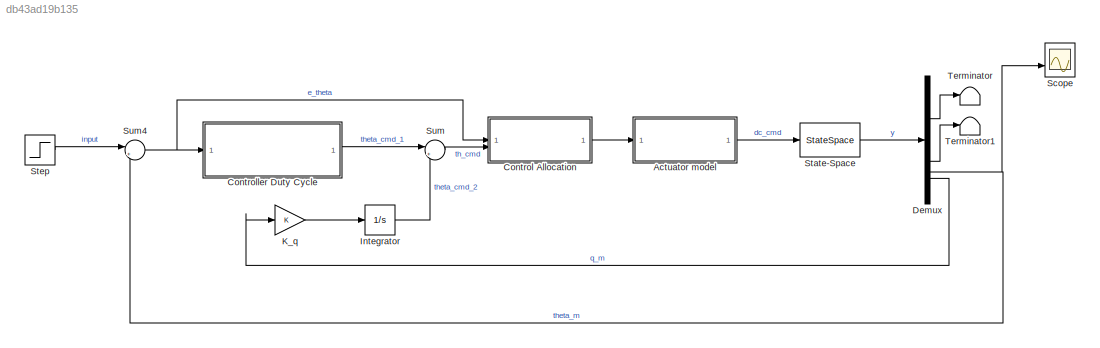
MODEL slx_db43ad19b135
KIND model
CONFIG AbsTol = auto
CONFIG EnableMultiTasking = off
CONFIG FixedStep = auto
CONFIG MaxStep = auto
CONFIG MinStep = auto
CONFIG RelTol = 1e-3
CONFIG SampleTimeConstraint = Unconstrained
CONFIG SolverName = VariableStepAuto
CONFIG StartTime = 0.0
CONFIG StopTime = 10
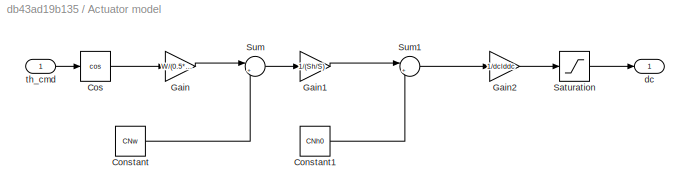
BLOCK [SubSystem] Actuator model
BLOCK [Constant] Actuator model/Constant
  Value = CNw
BLOCK [Constant] Actuator model/Constant1
  Value = CNh0
BLOCK [Trigonometry] Actuator model/Cos
  Operator = cos
BLOCK [Gain] Actuator model/Gain
  Gain = W/(0.5*rho*V^2*S)
BLOCK [Gain] Actuator model/Gain1
  Gain = 1/(Sh/S)
BLOCK [Gain] Actuator model/Gain2
  Gain = 1/dclddc
BLOCK [Saturate] Actuator model/Saturation
  LowerLimit = 0
  UpperLimit = 1
BLOCK [Sum] Actuator model/Sum
  Inputs = |+-
BLOCK [Sum] Actuator model/Sum1
  Inputs = |+-
BLOCK [Outport] Actuator model/dc
BLOCK [Inport] Actuator model/th_cmd
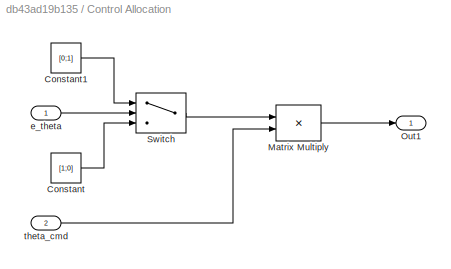
BLOCK [SubSystem] Control Allocation
BLOCK [Constant] Control Allocation/Constant
  Value = [1;0]
  VectorParams1D = off
BLOCK [Constant] Control Allocation/Constant1
  Value = [0;1]
  VectorParams1D = off
BLOCK [Product] Control Allocation/Matrix Multiply
  Multiplication = Matrix(*)
BLOCK [Outport] Control Allocation/Out1
BLOCK [Switch] Control Allocation/Switch
  Criteria = u2 > Threshold
  InputSameDT = off
  SaturateOnIntegerOverflow = off
BLOCK [Inport] Control Allocation/e_theta
BLOCK [Inport] Control Allocation/theta_cmd
  Port = 2
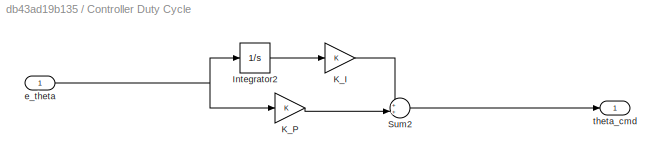
BLOCK [SubSystem] Controller Duty Cycle
BLOCK [Integrator] Controller Duty Cycle/Integrator2
BLOCK [Gain] Controller Duty Cycle/K_I
BLOCK [Gain] Controller Duty Cycle/K_P
BLOCK [Sum] Controller Duty Cycle/Sum2
  Inputs = ++|
BLOCK [Inport] Controller Duty Cycle/e_theta
BLOCK [Outport] Controller Duty Cycle/theta_cmd
BLOCK [Demux] Demux
BLOCK [Integrator] Integrator
BLOCK [Gain] K_q
BLOCK [Scope] Scope
  Floating = off
  NumInputPorts = 3
  ScopeSpecificationString = Simulink.scopes.TimeScopeBlockCfg('CurrentConfiguration', extmgr.ConfigurationSet(extmgr.Configuration('Core','General UI',true),extmgr.Configuration('Core','Source UI',true),extmgr.Configuration('Sources','WiredSimulink',true),extmgr.Configuration('Visuals','Time Domain',true,'SerializedDisplays',{struct('MinYLimReal','-0.00000000000000000000000000000000005','MaxYLimReal','0.000000000000000000000...<+1666ch>
BLOCK [StateSpace] State-Space
  A = A_long
  B = B_long
  C = C_long
  D = D_long
  InitialCondition = 0
BLOCK [Step] Step
  After = 0.02
  SampleTime = 0
BLOCK [Sum] Sum
  Inputs = |+-
BLOCK [Sum] Sum4
  Inputs = |+-
BLOCK [Terminator] Terminator
BLOCK [Terminator] Terminator1
LINE Actuator model/Constant1:1 -> Actuator model/Sum1:2
LINE Actuator model/Constant:1 -> Actuator model/Sum:2
LINE Actuator model/Cos:1 -> Actuator model/Gain:1
LINE Actuator model/Gain1:1 -> Actuator model/Sum1:1
LINE Actuator model/Gain2:1 -> Actuator model/Saturation:1
LINE Actuator model/Gain:1 -> Actuator model/Sum:1
LINE Actuator model/Saturation:1 -> Actuator model/dc:1
LINE Actuator model/Sum1:1 -> Actuator model/Gain2:1
LINE Actuator model/Sum:1 -> Actuator model/Gain1:1
LINE Actuator model/th_cmd:1 -> Actuator model/Cos:1
LINE Actuator model:1 -> State-Space:1
LINE Control Allocation/Constant1:1 -> Control Allocation/Switch:1
LINE Control Allocation/Constant:1 -> Control Allocation/Switch:3
LINE Control Allocation/Matrix Multiply:1 -> Control Allocation/Out1:1
LINE Control Allocation/Switch:1 -> Control Allocation/Matrix Multiply:1
LINE Control Allocation/e_theta:1 -> Control Allocation/Switch:2
LINE Control Allocation/theta_cmd:1 -> Control Allocation/Matrix Multiply:2
LINE Control Allocation:1 -> Actuator model:1
LINE Controller Duty Cycle/Integrator2:1 -> Controller Duty Cycle/K_I:1
LINE Controller Duty Cycle/K_I:1 -> Controller Duty Cycle/Sum2:1
LINE Controller Duty Cycle/K_P:1 -> Controller Duty Cycle/Sum2:2
LINE Controller Duty Cycle/Sum2:1 -> Controller Duty Cycle/theta_cmd:1
NET Controller Duty Cycle/e_theta:1 -> Controller Duty Cycle/Integrator2:1, Controller Duty Cycle/K_P:1
LINE Controller Duty Cycle:1 -> Sum:1
LINE Demux:1 -> Terminator:1
LINE Demux:2 -> Terminator1:1
NET Demux:3 -> Scope:2, Sum4:2
LINE Demux:4 -> K_q:1
LINE Integrator:1 -> Sum:2
LINE K_q:1 -> Integrator:1
LINE State-Space:1 -> Demux:1
LINE Step:1 -> Sum4:1
NET Sum4:1 -> Control Allocation:1, Controller Duty Cycle:1
LINE Sum:1 -> Control Allocation:2
note: NET lines group one-source signal fan-out (src -> all destinations, sorted); 1:1 wires keep LINE
